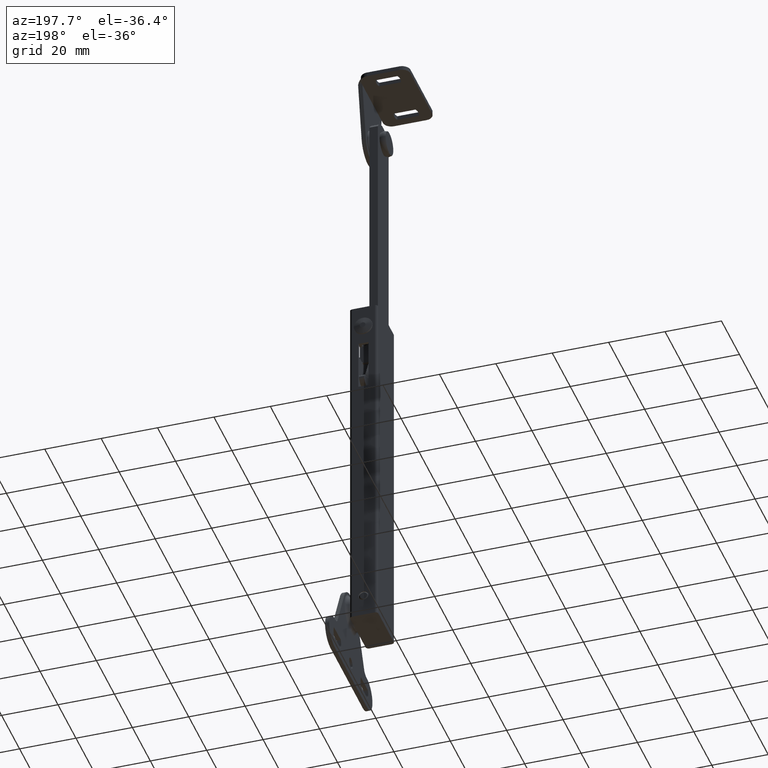
[diagram: clean part render]
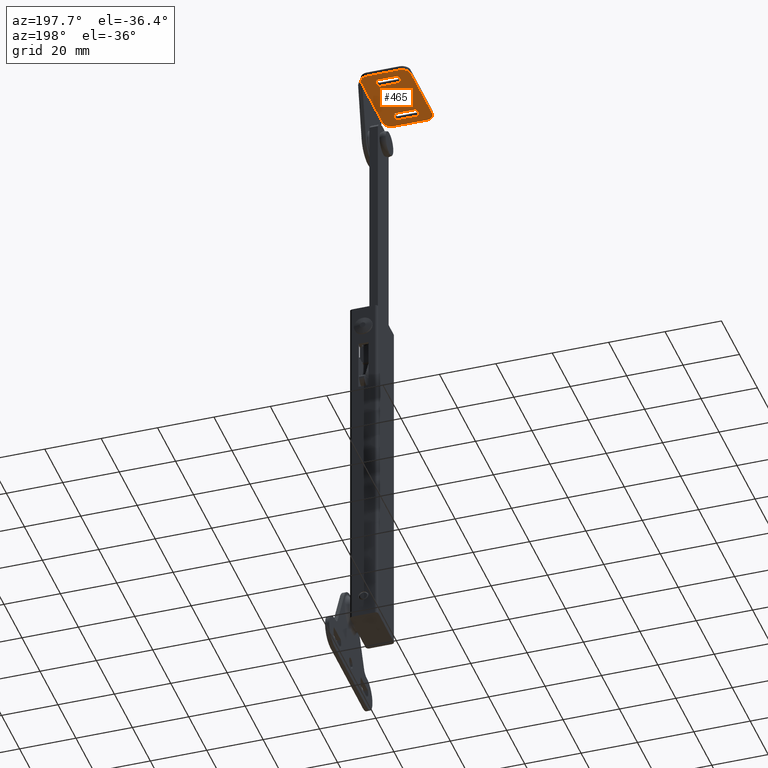
[diagram: same view with one face highlighted and labeled with its STEP entity id]
A machine part, auxiliary view. The second image highlights one B-rep face of the part: STEP entity #465.
In plain terms, the highlighted planar face has unit normal (0, 0, -1).
Its self-contained STEP definition (entity closure, byte-faithful):
#465=ADVANCED_FACE('',(#1115,#1116,#1117),#1114,.T.);
#1114=PLANE('',#3096);
#1115=FACE_OUTER_BOUND('',#3097,.T.);
#1116=FACE_BOUND('',#3098,.T.);
#1117=FACE_BOUND('',#3099,.T.);
#3093=CARTESIAN_POINT('',(-3.25000000000E+00,-1.80000030000E+01,2.13500000000E+02));
#3094=DIRECTION('',(0.00000000000E+00,0.00000000000E+00,-1.00000000000E+00));
#3095=DIRECTION('',(-1.00000000000E+00,0.00000000000E+00,0.00000000000E+00));
#3096=AXIS2_PLACEMENT_3D('',#3093,#3094,#3095);
#3097=EDGE_LOOP('',(#4397,#4398,#4399,#4400,#4401,#4402,#4403,#4404,#4405,#4406));
#3098=EDGE_LOOP('',(#4407,#4408,#4409,#4410));
#3099=EDGE_LOOP('',(#4411,#4412,#4413,#4414));
#4397=ORIENTED_EDGE('',*,*,#5317,.F.);
#4398=ORIENTED_EDGE('',*,*,#5318,.T.);
#4399=ORIENTED_EDGE('',*,*,#5319,.T.);
#4400=ORIENTED_EDGE('',*,*,#5320,.T.);
#4401=ORIENTED_EDGE('',*,*,#5321,.T.);
#4402=ORIENTED_EDGE('',*,*,#5314,.T.);
#4403=ORIENTED_EDGE('',*,*,#5289,.T.);
#4404=ORIENTED_EDGE('',*,*,#5322,.T.);
#4405=ORIENTED_EDGE('',*,*,#5323,.F.);
#4406=ORIENTED_EDGE('',*,*,#5324,.T.);
#4407=ORIENTED_EDGE('',*,*,#5308,.T.);
#4408=ORIENTED_EDGE('',*,*,#5305,.T.);
#4409=ORIENTED_EDGE('',*,*,#5302,.T.);
#4410=ORIENTED_EDGE('',*,*,#5325,.T.);
#4411=ORIENTED_EDGE('',*,*,#5326,.T.);
#4412=ORIENTED_EDGE('',*,*,#5298,.T.);
#4413=ORIENTED_EDGE('',*,*,#5295,.T.);
#4414=ORIENTED_EDGE('',*,*,#5292,.T.);
#5289=EDGE_CURVE('',#6326,#6385,#6392,.T.);
#5292=EDGE_CURVE('',#6413,#6406,#6414,.T.);
#5295=EDGE_CURVE('',#6433,#6413,#6434,.T.);
#5298=EDGE_CURVE('',#6453,#6433,#6454,.T.);
#5302=EDGE_CURVE('',#6481,#6474,#6482,.T.);
#5305=EDGE_CURVE('',#6501,#6481,#6502,.T.);
#5308=EDGE_CURVE('',#6521,#6501,#6522,.T.);
#5314=EDGE_CURVE('',#6298,#6326,#6560,.T.);
#5317=EDGE_CURVE('',#6580,#6581,#6582,.T.);
#5318=EDGE_CURVE('',#6580,#6588,#6589,.T.);
#5319=EDGE_CURVE('',#6588,#6595,#6596,.T.);
#5320=EDGE_CURVE('',#6595,#6602,#6603,.T.);
#5321=EDGE_CURVE('',#6602,#6298,#6609,.T.);
#5322=EDGE_CURVE('',#6385,#6615,#6616,.T.);
#5323=EDGE_CURVE('',#6622,#6615,#6623,.T.);
#5324=EDGE_CURVE('',#6622,#6581,#6629,.T.);
#5325=EDGE_CURVE('',#6474,#6521,#6635,.T.);
#5326=EDGE_CURVE('',#6406,#6453,#6641,.T.);
#6298=VERTEX_POINT('',#9472);
#6326=VERTEX_POINT('',#9488);
#6385=VERTEX_POINT('',#9524);
#6392=LINE('',#9528,#9529);
#6406=VERTEX_POINT('',#9536);
#6413=VERTEX_POINT('',#9540);
#6414=LINE('',#9541,#9542);
#6433=VERTEX_POINT('',#9552);
#6434=CIRCLE('',#9556,4.25000000000E+00);
#6453=VERTEX_POINT('',#9564);
#6454=LINE('',#9565,#9566);
#6474=VERTEX_POINT('',#9576);
#6481=VERTEX_POINT('',#9580);
#6482=LINE('',#9581,#9582);
#6501=VERTEX_POINT('',#9592);
#6502=CIRCLE('',#9596,4.25000000000E+00);
#6521=VERTEX_POINT('',#9604);
#6522=LINE('',#9605,#9606);
#6560=LINE('',#9626,#9627);
#6580=VERTEX_POINT('',#9639);
#6581=VERTEX_POINT('',#9640);
#6582=LINE('',#9641,#9642);
#6588=VERTEX_POINT('',#9644);
#6589=CIRCLE('',#9648,3.00000000000E+00);
#6595=VERTEX_POINT('',#9649);
#6596=LINE('',#9650,#9651);
#6602=VERTEX_POINT('',#9653);
#6603=CIRCLE('',#9657,3.00000000000E+00);
#6609=LINE('',#9658,#9659);
#6615=VERTEX_POINT('',#9661);
#6616=CIRCLE('',#9665,3.00000000000E+00);
#6622=VERTEX_POINT('',#9666);
#6623=LINE('',#9667,#9668);
#6629=CIRCLE('',#9673,3.00000000000E+00);
#6635=CIRCLE('',#9677,4.25000000000E+00);
#6641=CIRCLE('',#9681,4.25000000000E+00);
#9472=CARTESIAN_POINT('',(-5.00000000000E+00,1.07097234978E+01,2.13500000000E+02));
#9488=CARTESIAN_POINT('',(-5.00000000000E+00,-1.07097530728E+01,2.13500000000E+02));
#9524=CARTESIAN_POINT('',(-5.00000000000E+00,-1.20000000000E+01,2.13500000000E+02));
#9528=CARTESIAN_POINT('',(-5.00000000000E+00,-1.07097530728E+01,2.13500000000E+02));
#9529=VECTOR('',#9530,1.29024692718E+00);
#9530=DIRECTION('',(0.00000000000E+00,-1.00000000000E+00,0.00000000000E+00));
#9536=CARTESIAN_POINT('',(-1.78262368980E+01,1.18500060000E+01,2.13500000000E+02));
#9540=CARTESIAN_POINT('',(-1.01737631020E+01,1.18500060000E+01,2.13500000000E+02));
#9541=CARTESIAN_POINT('',(-1.01737631020E+01,1.18500060000E+01,2.13500000000E+02));
#9542=VECTOR('',#9543,7.65247379595E+00);
#9543=DIRECTION('',(-1.00000000000E+00,0.00000000000E+00,0.00000000000E+00));
#9552=CARTESIAN_POINT('',(-1.01737921125E+01,8.14999400000E+00,2.13500000000E+02));
#9553=CARTESIAN_POINT('',(-1.40000000000E+01,1.00000300000E+01,2.13500000000E+02));
#9554=DIRECTION('',(-0.00000000000E+00,0.00000000000E+00,1.00000000000E+00));
#9555=DIRECTION('',(9.00291034818E-01,4.35288470588E-01,0.00000000000E+00));
#9556=AXIS2_PLACEMENT_3D('',#9553,#9554,#9555);
#9564=CARTESIAN_POINT('',(-1.78262078875E+01,8.14999400000E+00,2.13500000000E+02));
#9565=CARTESIAN_POINT('',(-1.78262078875E+01,8.14999400000E+00,2.13500000000E+02));
#9566=VECTOR('',#9567,7.65241577509E+00);
#9567=DIRECTION('',(1.00000000000E+00,0.00000000000E+00,0.00000000000E+00));
#9576=CARTESIAN_POINT('',(-1.01737820000E+01,-1.18500060000E+01,2.13500000000E+02));
#9580=CARTESIAN_POINT('',(-1.78262253429E+01,-1.18499998988E+01,2.13500000000E+02));
#9581=CARTESIAN_POINT('',(-1.78262253429E+01,-1.18500060000E+01,2.13500000000E+02));
#9582=VECTOR('',#9583,7.65244334287E+00);
#9583=DIRECTION('',(1.00000000000E+00,0.00000000000E+00,0.00000000000E+00));
#9592=CARTESIAN_POINT('',(-1.78262252137E+01,-8.14999983408E+00,2.13500000000E+02));
#9593=CARTESIAN_POINT('',(-1.40000000000E+01,-1.00000000000E+01,2.13500000000E+02));
#9594=DIRECTION('',(0.00000000000E+00,-0.00000000000E+00,1.00000000000E+00));
#9595=DIRECTION('',(1.00000000000E+00,-0.00000000000E+00,-0.00000000000E+00));
#9596=AXIS2_PLACEMENT_3D('',#9593,#9594,#9595);
#9604=CARTESIAN_POINT('',(-1.01737747217E+01,-8.14999996764E+00,2.13500000000E+02));
#9605=CARTESIAN_POINT('',(-1.01737747217E+01,-8.14999400000E+00,2.13500000000E+02));
#9606=VECTOR('',#9607,7.65245049201E+00);
#9607=DIRECTION('',(-1.00000000000E+00,0.00000000000E+00,0.00000000000E+00));
#9626=CARTESIAN_POINT('',(-5.00000000000E+00,1.07097234978E+01,2.13500000000E+02));
#9627=VECTOR('',#9628,2.14194765707E+01);
#9628=DIRECTION('',(0.00000000000E+00,-1.00000000000E+00,0.00000000000E+00));
#9639=CARTESIAN_POINT('',(-2.25000000000E+01,1.20000300000E+01,2.13500000000E+02));
#9640=CARTESIAN_POINT('',(-2.25000000000E+01,-1.20000000000E+01,2.13500000000E+02));
#9641=CARTESIAN_POINT('',(-2.25000000000E+01,1.20000300000E+01,2.13500000000E+02));
#9642=VECTOR('',#9643,2.40000300000E+01);
#9643=DIRECTION('',(0.00000000000E+00,-1.00000000000E+00,0.00000000000E+00));
#9644=CARTESIAN_POINT('',(-1.95000000000E+01,1.50000300000E+01,2.13500000000E+02));
#9645=CARTESIAN_POINT('',(-1.95000000000E+01,1.20000300000E+01,2.13500000000E+02));
#9646=DIRECTION('',(0.00000000000E+00,0.00000000000E+00,-1.00000000000E+00));
#9647=DIRECTION('',(1.00000000000E+00,-0.00000000000E+00,-0.00000000000E+00));
#9648=AXIS2_PLACEMENT_3D('',#9645,#9646,#9647);
#9649=CARTESIAN_POINT('',(-8.00000000000E+00,1.50000300000E+01,2.13500000000E+02));
#9650=CARTESIAN_POINT('',(-1.95000000000E+01,1.50000300000E+01,2.13500000000E+02));
#9651=VECTOR('',#9652,1.15000000000E+01);
#9652=DIRECTION('',(1.00000000000E+00,0.00000000000E+00,0.00000000000E+00));
#9653=CARTESIAN_POINT('',(-5.00000000000E+00,1.20000300000E+01,2.13500000000E+02));
#9654=CARTESIAN_POINT('',(-8.00000000000E+00,1.20000300000E+01,2.13500000000E+02));
#9655=DIRECTION('',(0.00000000000E+00,0.00000000000E+00,-1.00000000000E+00));
#9656=DIRECTION('',(1.00000000000E+00,-0.00000000000E+00,-0.00000000000E+00));
#9657=AXIS2_PLACEMENT_3D('',#9654,#9655,#9656);
#9658=CARTESIAN_POINT('',(-5.00000000000E+00,1.20000300000E+01,2.13500000000E+02));
#9659=VECTOR('',#9660,1.29030650216E+00);
#9660=DIRECTION('',(0.00000000000E+00,-1.00000000000E+00,0.00000000000E+00));
#9661=CARTESIAN_POINT('',(-8.00000000000E+00,-1.50000000000E+01,2.13500000000E+02));
#9662=CARTESIAN_POINT('',(-8.00000000000E+00,-1.20000000000E+01,2.13500000000E+02));
#9663=DIRECTION('',(0.00000000000E+00,0.00000000000E+00,-1.00000000000E+00));
#9664=DIRECTION('',(1.00000000000E+00,-0.00000000000E+00,-0.00000000000E+00));
#9665=AXIS2_PLACEMENT_3D('',#9662,#9663,#9664);
#9666=CARTESIAN_POINT('',(-1.95000000000E+01,-1.50000000000E+01,2.13500000000E+02));
#9667=CARTESIAN_POINT('',(-1.95000000000E+01,-1.50000000000E+01,2.13500000000E+02));
#9668=VECTOR('',#9669,1.15000000000E+01);
#9669=DIRECTION('',(1.00000000000E+00,0.00000000000E+00,0.00000000000E+00));
#9670=CARTESIAN_POINT('',(-1.95000000000E+01,-1.20000000000E+01,2.13500000000E+02));
#9671=DIRECTION('',(0.00000000000E+00,0.00000000000E+00,-1.00000000000E+00));
#9672=DIRECTION('',(1.00000000000E+00,-0.00000000000E+00,-0.00000000000E+00));
#9673=AXIS2_PLACEMENT_3D('',#9670,#9671,#9672);
#9674=CARTESIAN_POINT('',(-1.40000000000E+01,-1.00000000000E+01,2.13500000000E+02));
#9675=DIRECTION('',(-0.00000000000E+00,0.00000000000E+00,1.00000000000E+00));
#9676=DIRECTION('',(9.00288300775E-01,4.35294125262E-01,0.00000000000E+00));
#9677=AXIS2_PLACEMENT_3D('',#9674,#9675,#9676);
#9678=CARTESIAN_POINT('',(-1.40000000000E+01,1.00000300000E+01,2.13500000000E+02));
#9679=DIRECTION('',(0.00000000000E+00,-0.00000000000E+00,1.00000000000E+00));
#9680=DIRECTION('',(1.00000000000E+00,-0.00000000000E+00,-0.00000000000E+00));
#9681=AXIS2_PLACEMENT_3D('',#9678,#9679,#9680);